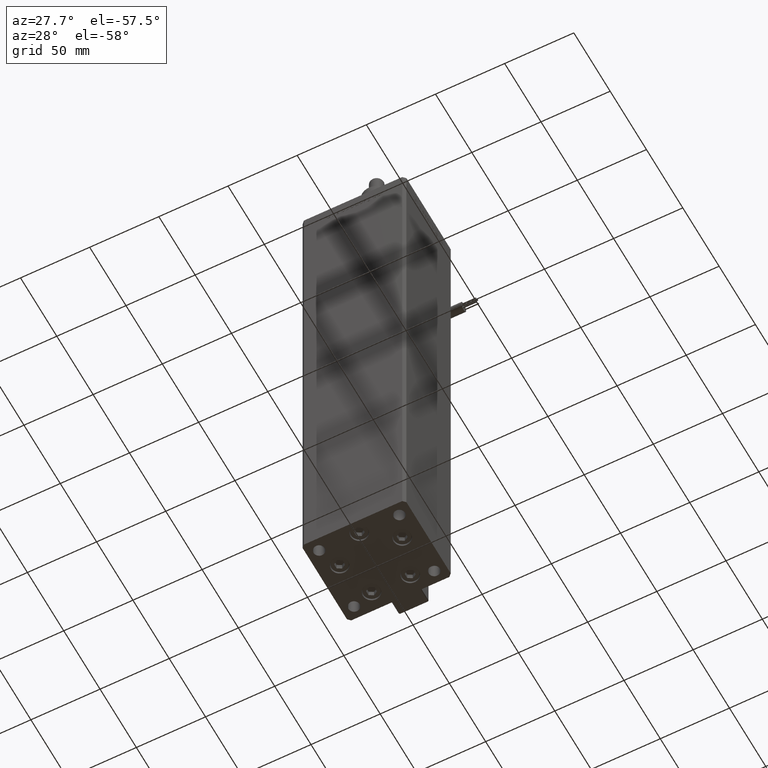
[diagram: clean part render]
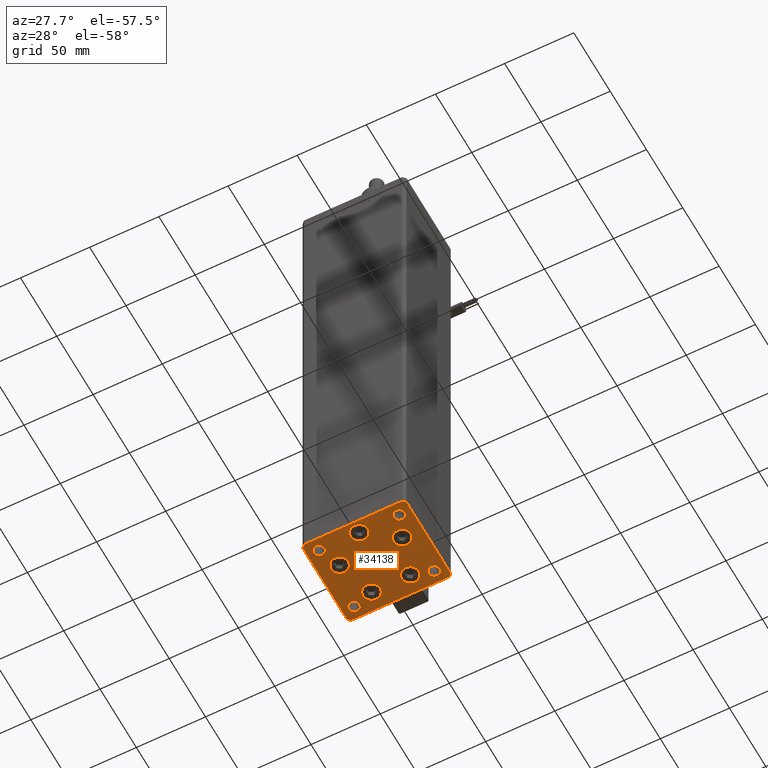
[diagram: same view with one face highlighted and labeled with its STEP entity id]
A machine part, auxiliary view. The second image highlights one B-rep face of the part: STEP entity #34138.
In plain terms, the highlighted planar face has unit normal (0, 0, -1).
Its self-contained STEP definition (entity closure, byte-faithful):
#46 = DIRECTION ( 'NONE',  ( 0.000000000000000000, -0.000000000000000000, -1.000000000000000000 ) ) ;
#174 = EDGE_CURVE ( 'NONE', #46068, #30287, #9039, .T. ) ;
#377 = CARTESIAN_POINT ( 'NONE',  ( -33.00000000000000711, 24.00000000000000711, 0.000000000000000000 ) ) ;
#684 = CARTESIAN_POINT ( 'NONE',  ( -33.00000000000000711, -23.99999999999999289, 0.000000000000000000 ) ) ;
#844 = EDGE_CURVE ( 'NONE', #41346, #48707, #12664, .T. ) ;
#929 = CARTESIAN_POINT ( 'NONE',  ( 37.49999999999992184, 30.50000000000001066, 0.000000000000000000 ) ) ;
#1248 = FACE_OUTER_BOUND ( 'NONE', #48932, .T. ) ;
#1318 = EDGE_CURVE ( 'NONE', #14770, #25701, #49350, .T. ) ;
#1509 = AXIS2_PLACEMENT_3D ( 'NONE', #2571, #20904, #47673 ) ;
#1749 = EDGE_CURVE ( 'NONE', #52698, #14276, #50841, .T. ) ;
#1784 = CARTESIAN_POINT ( 'NONE',  ( -16.37741699796951877, -8.000000000000005329, 0.000000000000000000 ) ) ;
#1819 = DIRECTION ( 'NONE',  ( -0.000000000000000000, 0.000000000000000000, 1.000000000000000000 ) ) ;
#1831 = CARTESIAN_POINT ( 'NONE',  ( -6.249999999999997335, -24.00000000000000000, 0.000000000000000000 ) ) ;
#1898 = CARTESIAN_POINT ( 'NONE',  ( 29.00000000000001066, -23.99999999999999289, 0.000000000000000000 ) ) ;
#2501 = CARTESIAN_POINT ( 'NONE',  ( -13.99106857963322703, 19.49999999999999645, 0.000000000000000000 ) ) ;
#2523 = LINE ( 'NONE', #25522, #41719 ) ;
#2571 = CARTESIAN_POINT ( 'NONE',  ( -29.00000000000001066, -23.99999999999999289, 0.000000000000000000 ) ) ;
#2942 = VERTEX_POINT ( 'NONE', #38310 ) ;
#2982 = AXIS2_PLACEMENT_3D ( 'NONE', #46528, #32859, #6657 ) ;
#3147 = EDGE_CURVE ( 'NONE', #48707, #41346, #30437, .T. ) ;
#3554 = CARTESIAN_POINT ( 'NONE',  ( -37.49999999999998579, -30.50000000000001421, 0.000000000000000000 ) ) ;
#3575 = VERTEX_POINT ( 'NONE', #48351 ) ;
#3648 = CARTESIAN_POINT ( 'NONE',  ( 25.00000000000000711, 24.00000000000000711, 0.000000000000000000 ) ) ;
#3859 = DIRECTION ( 'NONE',  ( 0.000000000000000000, -0.000000000000000000, -1.000000000000000000 ) ) ;
#3993 = CARTESIAN_POINT ( 'NONE',  ( 37.50000000000001421, -30.50000000000000711, 0.000000000000000000 ) ) ;
#4589 = VERTEX_POINT ( 'NONE', #1831 ) ;
#4612 = EDGE_CURVE ( 'NONE', #26261, #33001, #6298, .T. ) ;
#4991 = VERTEX_POINT ( 'NONE', #45071 ) ;
#5118 = VECTOR ( 'NONE', #57003, 1000.000000000000000 ) ;
#5152 = CIRCLE ( 'NONE', #40465, 4.000000000000003553 ) ;
#5214 = AXIS2_PLACEMENT_3D ( 'NONE', #16916, #52737, #12845 ) ;
#5452 = CARTESIAN_POINT ( 'NONE',  ( -35.50000000000002842, 32.49999999999999289, 0.000000000000000000 ) ) ;
#5481 = CARTESIAN_POINT ( 'NONE',  ( -29.00000000000001066, 24.00000000000000711, 0.000000000000000000 ) ) ;
#5590 = EDGE_CURVE ( 'NONE', #2942, #49676, #15645, .T. ) ;
#5723 = VERTEX_POINT ( 'NONE', #5452 ) ;
#5802 = EDGE_LOOP ( 'NONE', ( #9977, #12765 ) ) ;
#6269 = DIRECTION ( 'NONE',  ( 0.000000000000000000, -0.000000000000000000, -1.000000000000000000 ) ) ;
#6298 = CIRCLE ( 'NONE', #20254, 4.000000000000003553 ) ;
#6657 = DIRECTION ( 'NONE',  ( 1.000000000000000000, 0.000000000000000000, 0.000000000000000000 ) ) ;
#6677 = DIRECTION ( 'NONE',  ( 0.000000000000000000, -0.000000000000000000, -1.000000000000000000 ) ) ;
#6763 = FACE_BOUND ( 'NONE', #56201, .T. ) ;
#6772 = DIRECTION ( 'NONE',  ( 1.000000000000000000, 0.000000000000000000, 0.000000000000000000 ) ) ;
#7051 = LINE ( 'NONE', #3554, #31339 ) ;
#7135 = VERTEX_POINT ( 'NONE', #377 ) ;
#7738 = EDGE_CURVE ( 'NONE', #4589, #36189, #51006, .T. ) ;
#8732 = CIRCLE ( 'NONE', #41270, 6.250000000000000000 ) ;
#8801 = CARTESIAN_POINT ( 'NONE',  ( 33.00000000000001421, 24.00000000000000711, 0.000000000000000000 ) ) ;
#9039 = CIRCLE ( 'NONE', #5214, 6.250000000000001776 ) ;
#9056 = CARTESIAN_POINT ( 'NONE',  ( 35.50000000000000711, -32.50000000000000711, 0.000000000000000000 ) ) ;
#9078 = EDGE_CURVE ( 'NONE', #42483, #7135, #14823, .T. ) ;
#9977 = ORIENTED_EDGE ( 'NONE', *, *, #40394, .F. ) ;
#10062 = AXIS2_PLACEMENT_3D ( 'NONE', #39927, #46, #16663 ) ;
#11126 = PLANE ( 'NONE',  #51497 ) ;
#11442 = AXIS2_PLACEMENT_3D ( 'NONE', #40493, #49533, #41070 ) ;
#12664 = CIRCLE ( 'NONE', #1509, 4.000000000000000000 ) ;
#12765 = ORIENTED_EDGE ( 'NONE', *, *, #35931, .F. ) ;
#12845 = DIRECTION ( 'NONE',  ( 1.000000000000000000, 0.000000000000000000, 0.000000000000000000 ) ) ;
#13449 = CARTESIAN_POINT ( 'NONE',  ( -22.62741699796951877, -8.000000000000005329, 0.000000000000000000 ) ) ;
#14276 = VERTEX_POINT ( 'NONE', #35515 ) ;
#14594 = DIRECTION ( 'NONE',  ( 1.000000000000000000, 0.000000000000000000, 0.000000000000000000 ) ) ;
#14648 = DIRECTION ( 'NONE',  ( 1.000000000000000000, 0.000000000000000000, 0.000000000000000000 ) ) ;
#14738 = DIRECTION ( 'NONE',  ( -0.7071067811865482389, 0.7071067811865469066, 0.000000000000000000 ) ) ;
#14770 = VERTEX_POINT ( 'NONE', #31086 ) ;
#14823 = CIRCLE ( 'NONE', #47328, 3.999999999999996447 ) ;
#14948 = CARTESIAN_POINT ( 'NONE',  ( -25.00000000000001066, -23.99999999999999289, 0.000000000000000000 ) ) ;
#15017 = CARTESIAN_POINT ( 'NONE',  ( 37.49999999999992184, 30.50000000000001066, 0.000000000000000000 ) ) ;
#15119 = ORIENTED_EDGE ( 'NONE', *, *, #52046, .T. ) ;
#15212 = FACE_BOUND ( 'NONE', #31910, .T. ) ;
#15412 = ORIENTED_EDGE ( 'NONE', *, *, #49551, .T. ) ;
#15645 = CIRCLE ( 'NONE', #24905, 6.250000000000000000 ) ;
#16220 = DIRECTION ( 'NONE',  ( 0.000000000000000000, -0.000000000000000000, -1.000000000000000000 ) ) ;
#16609 = AXIS2_PLACEMENT_3D ( 'NONE', #2501, #19981, #20266 ) ;
#16663 = DIRECTION ( 'NONE',  ( 1.000000000000000000, 0.000000000000000000, 0.000000000000000000 ) ) ;
#16794 = VERTEX_POINT ( 'NONE', #8801 ) ;
#16823 = LINE ( 'NONE', #47663, #25396 ) ;
#16916 = CARTESIAN_POINT ( 'NONE',  ( 22.62741699796951877, -8.000000000000000000, 0.000000000000000000 ) ) ;
#17488 = CARTESIAN_POINT ( 'NONE',  ( -20.24106857963322881, 19.49999999999999645, 0.000000000000000000 ) ) ;
#18464 = CIRCLE ( 'NONE', #10062, 6.250000000000000000 ) ;
#18797 = DIRECTION ( 'NONE',  ( 1.000000000000000000, 0.000000000000000000, 0.000000000000000000 ) ) ;
#19383 = CARTESIAN_POINT ( 'NONE',  ( 7.741068579633223479, 19.50000000000000000, 0.000000000000000000 ) ) ;
#19497 = CARTESIAN_POINT ( 'NONE',  ( -22.62741699796951877, -8.000000000000005329, 0.000000000000000000 ) ) ;
#19590 = FACE_BOUND ( 'NONE', #45814, .T. ) ;
#19742 = ORIENTED_EDGE ( 'NONE', *, *, #22638, .T. ) ;
#19981 = DIRECTION ( 'NONE',  ( 0.000000000000000000, -0.000000000000000000, -1.000000000000000000 ) ) ;
#20105 = EDGE_CURVE ( 'NONE', #30287, #46068, #40143, .T. ) ;
#20191 = CIRCLE ( 'NONE', #52763, 4.000000000000003553 ) ;
#20254 = AXIS2_PLACEMENT_3D ( 'NONE', #46642, #51302, #6772 ) ;
#20266 = DIRECTION ( 'NONE',  ( 1.000000000000000000, 0.000000000000000000, 0.000000000000000000 ) ) ;
#20741 = CIRCLE ( 'NONE', #11442, 3.999999999999996447 ) ;
#20904 = DIRECTION ( 'NONE',  ( 0.000000000000000000, -0.000000000000000000, -1.000000000000000000 ) ) ;
#21999 = CARTESIAN_POINT ( 'NONE',  ( -29.00000000000001066, -23.99999999999999289, 0.000000000000000000 ) ) ;
#22039 = VERTEX_POINT ( 'NONE', #34656 ) ;
#22259 = CARTESIAN_POINT ( 'NONE',  ( -25.00000000000001421, 24.00000000000000711, 0.000000000000000000 ) ) ;
#22288 = DIRECTION ( 'NONE',  ( 1.000000000000000000, 0.000000000000000000, 0.000000000000000000 ) ) ;
#22638 = EDGE_CURVE ( 'NONE', #5723, #14770, #16823, .T. ) ;
#22820 = VERTEX_POINT ( 'NONE', #48179 ) ;
#22850 = CARTESIAN_POINT ( 'NONE',  ( -37.50000000000001421, 30.49999999999998579, 0.000000000000000000 ) ) ;
#23373 = FACE_BOUND ( 'NONE', #38546, .T. ) ;
#23869 = AXIS2_PLACEMENT_3D ( 'NONE', #19497, #6677, #46547 ) ;
#24429 = VERTEX_POINT ( 'NONE', #17488 ) ;
#24492 = ORIENTED_EDGE ( 'NONE', *, *, #174, .T. ) ;
#24786 = EDGE_CURVE ( 'NONE', #36189, #4589, #8732, .T. ) ;
#24905 = AXIS2_PLACEMENT_3D ( 'NONE', #40492, #45728, #14594 ) ;
#25396 = VECTOR ( 'NONE', #47085, 1000.000000000000000 ) ;
#25438 = DIRECTION ( 'NONE',  ( 0.000000000000000000, -0.000000000000000000, -1.000000000000000000 ) ) ;
#25522 = CARTESIAN_POINT ( 'NONE',  ( -35.49999999999998579, -32.50000000000001421, 0.000000000000000000 ) ) ;
#25701 = VERTEX_POINT ( 'NONE', #32250 ) ;
#25780 = EDGE_LOOP ( 'NONE', ( #35064, #37695 ) ) ;
#25992 = DIRECTION ( 'NONE',  ( 1.000000000000000000, 0.000000000000000000, 0.000000000000000000 ) ) ;
#25993 = CARTESIAN_POINT ( 'NONE',  ( 6.250000000000002665, -24.00000000000000000, 0.000000000000000000 ) ) ;
#26009 = ORIENTED_EDGE ( 'NONE', *, *, #1749, .T. ) ;
#26261 = VERTEX_POINT ( 'NONE', #37264 ) ;
#26665 = DIRECTION ( 'NONE',  ( -0.000000000000000000, 0.000000000000000000, 1.000000000000000000 ) ) ;
#26913 = CARTESIAN_POINT ( 'NONE',  ( 29.00000000000001066, 24.00000000000000711, 0.000000000000000000 ) ) ;
#27110 = LINE ( 'NONE', #9056, #38081 ) ;
#28683 = AXIS2_PLACEMENT_3D ( 'NONE', #13449, #3859, #25992 ) ;
#29139 = AXIS2_PLACEMENT_3D ( 'NONE', #39713, #16220, #57513 ) ;
#29441 = ORIENTED_EDGE ( 'NONE', *, *, #7738, .T. ) ;
#29479 = CARTESIAN_POINT ( 'NONE',  ( -7.741068579633227031, 19.49999999999999645, 0.000000000000000000 ) ) ;
#29502 = ORIENTED_EDGE ( 'NONE', *, *, #39366, .T. ) ;
#30287 = VERTEX_POINT ( 'NONE', #37734 ) ;
#30328 = DIRECTION ( 'NONE',  ( 0.7071067811865474617, -0.7071067811865474617, 0.000000000000000000 ) ) ;
#30437 = CIRCLE ( 'NONE', #50894, 4.000000000000000000 ) ;
#30480 = ORIENTED_EDGE ( 'NONE', *, *, #51903, .T. ) ;
#30589 = EDGE_LOOP ( 'NONE', ( #46846, #24492 ) ) ;
#31086 = CARTESIAN_POINT ( 'NONE',  ( -37.50000000000001421, 30.49999999999998579, 0.000000000000000000 ) ) ;
#31265 = EDGE_LOOP ( 'NONE', ( #46739, #52766 ) ) ;
#31339 = VECTOR ( 'NONE', #30328, 1000.000000000000114 ) ;
#31850 = DIRECTION ( 'NONE',  ( 1.000000000000000000, 0.000000000000000000, 0.000000000000000000 ) ) ;
#31910 = EDGE_LOOP ( 'NONE', ( #48458, #15119 ) ) ;
#31946 = EDGE_CURVE ( 'NONE', #7135, #42483, #20741, .T. ) ;
#31994 = ORIENTED_EDGE ( 'NONE', *, *, #5590, .T. ) ;
#32135 = DIRECTION ( 'NONE',  ( -0.000000000000000000, 0.000000000000000000, 1.000000000000000000 ) ) ;
#32250 = CARTESIAN_POINT ( 'NONE',  ( -37.49999999999998579, -30.50000000000001421, 0.000000000000000000 ) ) ;
#32691 = VERTEX_POINT ( 'NONE', #3648 ) ;
#32859 = DIRECTION ( 'NONE',  ( 0.000000000000000000, -0.000000000000000000, -1.000000000000000000 ) ) ;
#32923 = CARTESIAN_POINT ( 'NONE',  ( 25.00000000000000711, -23.99999999999999289, 0.000000000000000000 ) ) ;
#33001 = VERTEX_POINT ( 'NONE', #32923 ) ;
#33241 = FACE_BOUND ( 'NONE', #36803, .T. ) ;
#33335 = AXIS2_PLACEMENT_3D ( 'NONE', #49659, #6269, #18797 ) ;
#33459 = ORIENTED_EDGE ( 'NONE', *, *, #24786, .T. ) ;
#34138 = ADVANCED_FACE ( 'NONE', ( #15212, #19590, #37327, #6763, #23373, #36748, #33241, #41122, #1248, #55131 ), #11126, .T. ) ;
#34414 = ORIENTED_EDGE ( 'NONE', *, *, #55694, .T. ) ;
#34656 = CARTESIAN_POINT ( 'NONE',  ( -35.49999999999998579, -32.50000000000001421, 0.000000000000000000 ) ) ;
#35064 = ORIENTED_EDGE ( 'NONE', *, *, #9078, .F. ) ;
#35091 = DIRECTION ( 'NONE',  ( 4.550094363217855288E-16, -1.000000000000000000, 0.000000000000000000 ) ) ;
#35515 = CARTESIAN_POINT ( 'NONE',  ( -28.87741699796952233, -8.000000000000005329, 0.000000000000000000 ) ) ;
#35853 = EDGE_CURVE ( 'NONE', #49676, #2942, #50554, .T. ) ;
#35931 = EDGE_CURVE ( 'NONE', #32691, #16794, #43090, .T. ) ;
#35957 = CARTESIAN_POINT ( 'NONE',  ( 29.00000000000001066, 24.00000000000000711, 0.000000000000000000 ) ) ;
#36110 = DIRECTION ( 'NONE',  ( 0.7071067811865487940, 0.7071067811865463515, 0.000000000000000000 ) ) ;
#36189 = VERTEX_POINT ( 'NONE', #25993 ) ;
#36232 = VERTEX_POINT ( 'NONE', #29479 ) ;
#36748 = FACE_BOUND ( 'NONE', #5802, .T. ) ;
#36803 = EDGE_LOOP ( 'NONE', ( #41997, #39948 ) ) ;
#36900 = DIRECTION ( 'NONE',  ( 1.000000000000000000, 0.000000000000000000, 0.000000000000000000 ) ) ;
#37264 = CARTESIAN_POINT ( 'NONE',  ( 33.00000000000001421, -23.99999999999999289, 0.000000000000000000 ) ) ;
#37313 = ORIENTED_EDGE ( 'NONE', *, *, #49620, .T. ) ;
#37327 = FACE_BOUND ( 'NONE', #30589, .T. ) ;
#37402 = DIRECTION ( 'NONE',  ( 1.000000000000000000, 0.000000000000000000, 0.000000000000000000 ) ) ;
#37695 = ORIENTED_EDGE ( 'NONE', *, *, #31946, .F. ) ;
#37734 = CARTESIAN_POINT ( 'NONE',  ( 16.37741699796951877, -8.000000000000000000, 0.000000000000000000 ) ) ;
#38081 = VECTOR ( 'NONE', #36110, 1000.000000000000000 ) ;
#38310 = CARTESIAN_POINT ( 'NONE',  ( 20.24106857963322526, 19.50000000000000000, 0.000000000000000000 ) ) ;
#38546 = EDGE_LOOP ( 'NONE', ( #30480, #26009 ) ) ;
#39191 = CARTESIAN_POINT ( 'NONE',  ( 35.49999999999992184, 32.50000000000000711, 0.000000000000000000 ) ) ;
#39366 = EDGE_CURVE ( 'NONE', #22820, #5723, #52899, .T. ) ;
#39713 = CARTESIAN_POINT ( 'NONE',  ( 13.99106857963322348, 19.50000000000000000, 0.000000000000000000 ) ) ;
#39750 = DIRECTION ( 'NONE',  ( 0.000000000000000000, -0.000000000000000000, -1.000000000000000000 ) ) ;
#39927 = CARTESIAN_POINT ( 'NONE',  ( -13.99106857963322703, 19.49999999999999645, 0.000000000000000000 ) ) ;
#39948 = ORIENTED_EDGE ( 'NONE', *, *, #45744, .T. ) ;
#40143 = CIRCLE ( 'NONE', #2982, 6.250000000000001776 ) ;
#40394 = EDGE_CURVE ( 'NONE', #16794, #32691, #5152, .T. ) ;
#40465 = AXIS2_PLACEMENT_3D ( 'NONE', #35957, #26665, #22288 ) ;
#40492 = CARTESIAN_POINT ( 'NONE',  ( 13.99106857963322348, 19.50000000000000000, 0.000000000000000000 ) ) ;
#40493 = CARTESIAN_POINT ( 'NONE',  ( -29.00000000000001066, 24.00000000000000711, 0.000000000000000000 ) ) ;
#40633 = LINE ( 'NONE', #15017, #43457 ) ;
#41070 = DIRECTION ( 'NONE',  ( 1.000000000000000000, 0.000000000000000000, 0.000000000000000000 ) ) ;
#41122 = FACE_BOUND ( 'NONE', #25780, .T. ) ;
#41241 = ORIENTED_EDGE ( 'NONE', *, *, #48817, .T. ) ;
#41270 = AXIS2_PLACEMENT_3D ( 'NONE', #56625, #25438, #48423 ) ;
#41346 = VERTEX_POINT ( 'NONE', #684 ) ;
#41719 = VECTOR ( 'NONE', #52016, 1000.000000000000000 ) ;
#41839 = DIRECTION ( 'NONE',  ( -0.000000000000000000, 0.000000000000000000, 1.000000000000000000 ) ) ;
#41997 = ORIENTED_EDGE ( 'NONE', *, *, #4612, .T. ) ;
#42483 = VERTEX_POINT ( 'NONE', #22259 ) ;
#42752 = VERTEX_POINT ( 'NONE', #929 ) ;
#43090 = CIRCLE ( 'NONE', #49603, 4.000000000000003553 ) ;
#43457 = VECTOR ( 'NONE', #14738, 999.9999999999998863 ) ;
#45071 = CARTESIAN_POINT ( 'NONE',  ( 37.50000000000001421, -30.50000000000000711, 0.000000000000000000 ) ) ;
#45728 = DIRECTION ( 'NONE',  ( 0.000000000000000000, -0.000000000000000000, -1.000000000000000000 ) ) ;
#45744 = EDGE_CURVE ( 'NONE', #33001, #26261, #20191, .T. ) ;
#45814 = EDGE_LOOP ( 'NONE', ( #52581, #31994 ) ) ;
#46068 = VERTEX_POINT ( 'NONE', #47210 ) ;
#46309 = ORIENTED_EDGE ( 'NONE', *, *, #1318, .T. ) ;
#46528 = CARTESIAN_POINT ( 'NONE',  ( 22.62741699796951877, -8.000000000000000000, 0.000000000000000000 ) ) ;
#46547 = DIRECTION ( 'NONE',  ( 1.000000000000000000, 0.000000000000000000, 0.000000000000000000 ) ) ;
#46642 = CARTESIAN_POINT ( 'NONE',  ( 29.00000000000001066, -23.99999999999999289, 0.000000000000000000 ) ) ;
#46739 = ORIENTED_EDGE ( 'NONE', *, *, #3147, .T. ) ;
#46846 = ORIENTED_EDGE ( 'NONE', *, *, #20105, .T. ) ;
#47085 = DIRECTION ( 'NONE',  ( -0.7071067811865426878, -0.7071067811865524577, 0.000000000000000000 ) ) ;
#47210 = CARTESIAN_POINT ( 'NONE',  ( 28.87741699796952233, -8.000000000000000000, 0.000000000000000000 ) ) ;
#47328 = AXIS2_PLACEMENT_3D ( 'NONE', #5481, #41839, #36900 ) ;
#47663 = CARTESIAN_POINT ( 'NONE',  ( -35.50000000000002842, 32.49999999999999289, 0.000000000000000000 ) ) ;
#47673 = DIRECTION ( 'NONE',  ( 1.000000000000000000, 0.000000000000000000, 0.000000000000000000 ) ) ;
#48179 = CARTESIAN_POINT ( 'NONE',  ( 35.49999999999992184, 32.50000000000000711, 0.000000000000000000 ) ) ;
#48238 = CIRCLE ( 'NONE', #16609, 6.250000000000000000 ) ;
#48351 = CARTESIAN_POINT ( 'NONE',  ( 35.50000000000000711, -32.50000000000000711, 0.000000000000000000 ) ) ;
#48423 = DIRECTION ( 'NONE',  ( 1.000000000000000000, 0.000000000000000000, 0.000000000000000000 ) ) ;
#48458 = ORIENTED_EDGE ( 'NONE', *, *, #53299, .T. ) ;
#48707 = VERTEX_POINT ( 'NONE', #14948 ) ;
#48817 = EDGE_CURVE ( 'NONE', #25701, #22039, #7051, .T. ) ;
#48932 = EDGE_LOOP ( 'NONE', ( #41241, #51851, #34414, #15412, #37313, #29502, #19742, #46309 ) ) ;
#49350 = LINE ( 'NONE', #22850, #55488 ) ;
#49533 = DIRECTION ( 'NONE',  ( -0.000000000000000000, 0.000000000000000000, 1.000000000000000000 ) ) ;
#49551 = EDGE_CURVE ( 'NONE', #4991, #42752, #57014, .T. ) ;
#49603 = AXIS2_PLACEMENT_3D ( 'NONE', #26913, #32135, #31850 ) ;
#49620 = EDGE_CURVE ( 'NONE', #42752, #22820, #40633, .T. ) ;
#49659 = CARTESIAN_POINT ( 'NONE',  ( 2.939152317953647500E-15, -24.00000000000000000, 0.000000000000000000 ) ) ;
#49676 = VERTEX_POINT ( 'NONE', #19383 ) ;
#50554 = CIRCLE ( 'NONE', #29139, 6.250000000000000000 ) ;
#50727 = CARTESIAN_POINT ( 'NONE',  ( 0.000000000000000000, 0.000000000000000000, 0.000000000000000000 ) ) ;
#50810 = DIRECTION ( 'NONE',  ( 0.000000000000000000, -0.000000000000000000, -1.000000000000000000 ) ) ;
#50841 = CIRCLE ( 'NONE', #23869, 6.250000000000001776 ) ;
#50894 = AXIS2_PLACEMENT_3D ( 'NONE', #21999, #39750, #53457 ) ;
#51006 = CIRCLE ( 'NONE', #33335, 6.250000000000000000 ) ;
#51302 = DIRECTION ( 'NONE',  ( 0.000000000000000000, -0.000000000000000000, -1.000000000000000000 ) ) ;
#51497 = AXIS2_PLACEMENT_3D ( 'NONE', #50727, #1819, #14648 ) ;
#51851 = ORIENTED_EDGE ( 'NONE', *, *, #52996, .T. ) ;
#51902 = CIRCLE ( 'NONE', #28683, 6.250000000000001776 ) ;
#51903 = EDGE_CURVE ( 'NONE', #14276, #52698, #51902, .T. ) ;
#52016 = DIRECTION ( 'NONE',  ( 1.000000000000000000, 9.773090005503140331E-17, 0.000000000000000000 ) ) ;
#52046 = EDGE_CURVE ( 'NONE', #36232, #24429, #18464, .T. ) ;
#52581 = ORIENTED_EDGE ( 'NONE', *, *, #35853, .T. ) ;
#52616 = DIRECTION ( 'NONE',  ( -1.478780668045802821E-15, 1.000000000000000000, 0.000000000000000000 ) ) ;
#52698 = VERTEX_POINT ( 'NONE', #1784 ) ;
#52737 = DIRECTION ( 'NONE',  ( 0.000000000000000000, -0.000000000000000000, -1.000000000000000000 ) ) ;
#52763 = AXIS2_PLACEMENT_3D ( 'NONE', #1898, #50810, #37402 ) ;
#52766 = ORIENTED_EDGE ( 'NONE', *, *, #844, .T. ) ;
#52899 = LINE ( 'NONE', #39191, #5118 ) ;
#52996 = EDGE_CURVE ( 'NONE', #22039, #3575, #2523, .T. ) ;
#53299 = EDGE_CURVE ( 'NONE', #24429, #36232, #48238, .T. ) ;
#53457 = DIRECTION ( 'NONE',  ( 1.000000000000000000, 0.000000000000000000, 0.000000000000000000 ) ) ;
#55131 = FACE_BOUND ( 'NONE', #31265, .T. ) ;
#55488 = VECTOR ( 'NONE', #35091, 1000.000000000000000 ) ;
#55694 = EDGE_CURVE ( 'NONE', #3575, #4991, #27110, .T. ) ;
#56201 = EDGE_LOOP ( 'NONE', ( #29441, #33459 ) ) ;
#56625 = CARTESIAN_POINT ( 'NONE',  ( 2.939152317953647500E-15, -24.00000000000000000, 0.000000000000000000 ) ) ;
#57003 = DIRECTION ( 'NONE',  ( -1.000000000000000000, -1.954618001100629052E-16, 0.000000000000000000 ) ) ;
#57014 = LINE ( 'NONE', #3993, #57426 ) ;
#57426 = VECTOR ( 'NONE', #52616, 1000.000000000000000 ) ;
#57513 = DIRECTION ( 'NONE',  ( 1.000000000000000000, 0.000000000000000000, 0.000000000000000000 ) ) ;